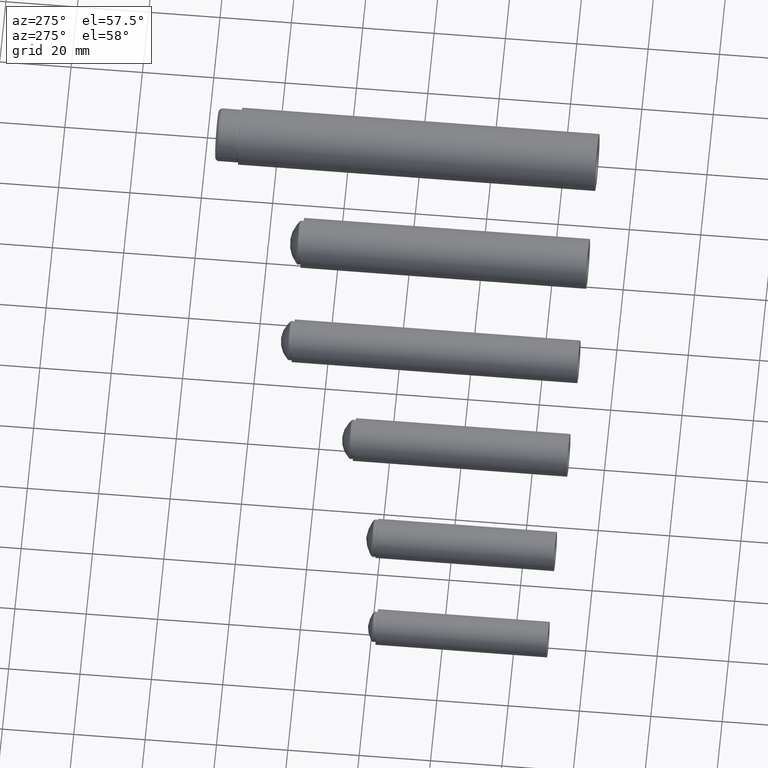
[diagram: clean part render]
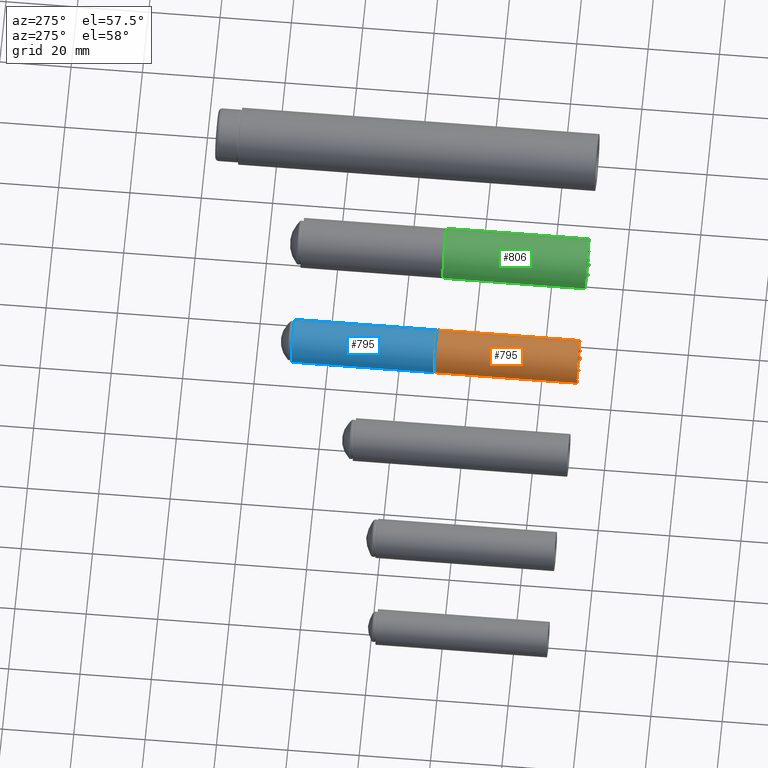
[diagram: same view with three faces highlighted in distinct colors, each labeled with its STEP entity id]
A machine part, auxiliary view with three faces highlighted in distinct colors.
Their STEP definitions:

[orange] entity #795 — the highlighted cylindrical surface (bore or boss wall) has radius 6 mm, axis along (0, 1, 0).
#225=FACE_BOUND('',#380,.T.);
#285=FACE_OUTER_BOUND('',#379,.T.);
#379=EDGE_LOOP('',(#679));
#380=EDGE_LOOP('',(#680));
#469=CIRCLE('',#925,6.);
#470=CIRCLE('',#926,6.);
#529=VERTEX_POINT('',#1464);
#530=VERTEX_POINT('',#1466);
#589=EDGE_CURVE('',#529,#529,#469,.T.);
#590=EDGE_CURVE('',#530,#530,#470,.T.);
#679=ORIENTED_EDGE('',*,*,#589,.F.);
#680=ORIENTED_EDGE('',*,*,#590,.F.);
#750=CYLINDRICAL_SURFACE('',#924,6.);
#795=ADVANCED_FACE('',(#285,#225),#750,.T.);
#924=AXIS2_PLACEMENT_3D('',#1463,#1178,#1179);
#925=AXIS2_PLACEMENT_3D('',#1465,#1180,#1181);
#926=AXIS2_PLACEMENT_3D('',#1467,#1182,#1183);
#1178=DIRECTION('center_axis',(0.,0.,1.));
#1179=DIRECTION('ref_axis',(-1.,0.,0.));
#1180=DIRECTION('center_axis',(0.,0.,1.));
#1181=DIRECTION('ref_axis',(-1.,0.,0.));
#1182=DIRECTION('center_axis',(0.,0.,-1.));
#1183=DIRECTION('ref_axis',(-1.,0.,0.));
#1463=CARTESIAN_POINT('Origin',(0.,0.,0.));
#1464=CARTESIAN_POINT('',(6.,7.34788079488412E-16,40.));
#1465=CARTESIAN_POINT('Origin',(0.,0.,40.));
#1466=CARTESIAN_POINT('',(6.,7.34788079488412E-16,0.));
#1467=CARTESIAN_POINT('Origin',(0.,0.,0.));

[blue] entity #795 — the highlighted cylindrical surface (bore or boss wall) has radius 6 mm, axis along (0, 1, 0).
#225=FACE_BOUND('',#380,.T.);
#285=FACE_OUTER_BOUND('',#379,.T.);
#379=EDGE_LOOP('',(#679));
#380=EDGE_LOOP('',(#680));
#469=CIRCLE('',#925,6.);
#470=CIRCLE('',#926,6.);
#529=VERTEX_POINT('',#1464);
#530=VERTEX_POINT('',#1466);
#589=EDGE_CURVE('',#529,#529,#469,.T.);
#590=EDGE_CURVE('',#530,#530,#470,.T.);
#679=ORIENTED_EDGE('',*,*,#589,.F.);
#680=ORIENTED_EDGE('',*,*,#590,.F.);
#750=CYLINDRICAL_SURFACE('',#924,6.);
#795=ADVANCED_FACE('',(#285,#225),#750,.T.);
#924=AXIS2_PLACEMENT_3D('',#1463,#1178,#1179);
#925=AXIS2_PLACEMENT_3D('',#1465,#1180,#1181);
#926=AXIS2_PLACEMENT_3D('',#1467,#1182,#1183);
#1178=DIRECTION('center_axis',(0.,0.,1.));
#1179=DIRECTION('ref_axis',(-1.,0.,0.));
#1180=DIRECTION('center_axis',(0.,0.,1.));
#1181=DIRECTION('ref_axis',(-1.,0.,0.));
#1182=DIRECTION('center_axis',(0.,0.,-1.));
#1183=DIRECTION('ref_axis',(-1.,0.,0.));
#1463=CARTESIAN_POINT('Origin',(0.,0.,0.));
#1464=CARTESIAN_POINT('',(6.,7.34788079488412E-16,40.));
#1465=CARTESIAN_POINT('Origin',(0.,0.,40.));
#1466=CARTESIAN_POINT('',(6.,7.34788079488412E-16,0.));
#1467=CARTESIAN_POINT('Origin',(0.,0.,0.));

[green] entity #806 — the highlighted cylindrical surface (bore or boss wall) has radius 7 mm, axis along (0, 1, 0).
#234=FACE_BOUND('',#400,.T.);
#296=FACE_OUTER_BOUND('',#399,.T.);
#399=EDGE_LOOP('',(#699));
#400=EDGE_LOOP('',(#700));
#479=CIRCLE('',#952,7.);
#480=CIRCLE('',#953,7.);
#539=VERTEX_POINT('',#1501);
#540=VERTEX_POINT('',#1503);
#599=EDGE_CURVE('',#539,#539,#479,.T.);
#600=EDGE_CURVE('',#540,#540,#480,.T.);
#699=ORIENTED_EDGE('',*,*,#599,.F.);
#700=ORIENTED_EDGE('',*,*,#600,.F.);
#754=CYLINDRICAL_SURFACE('',#951,7.);
#806=ADVANCED_FACE('',(#296,#234),#754,.T.);
#951=AXIS2_PLACEMENT_3D('',#1500,#1232,#1233);
#952=AXIS2_PLACEMENT_3D('',#1502,#1234,#1235);
#953=AXIS2_PLACEMENT_3D('',#1504,#1236,#1237);
#1232=DIRECTION('center_axis',(0.,0.,1.));
#1233=DIRECTION('ref_axis',(-1.,0.,0.));
#1234=DIRECTION('center_axis',(0.,0.,1.));
#1235=DIRECTION('ref_axis',(-1.,0.,0.));
#1236=DIRECTION('center_axis',(0.,0.,-1.));
#1237=DIRECTION('ref_axis',(-1.,0.,0.));
#1500=CARTESIAN_POINT('Origin',(0.,0.,0.));
#1501=CARTESIAN_POINT('',(7.,8.57252759403147E-16,40.));
#1502=CARTESIAN_POINT('Origin',(0.,0.,40.));
#1503=CARTESIAN_POINT('',(7.,8.57252759403147E-16,0.));
#1504=CARTESIAN_POINT('Origin',(0.,0.,0.));